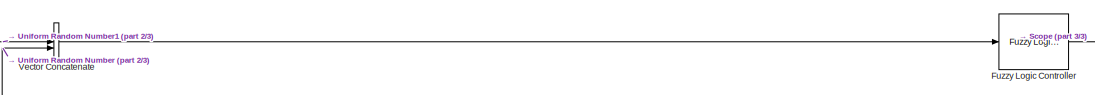
[diagram: root canvas - part 1/3, full width, top band]
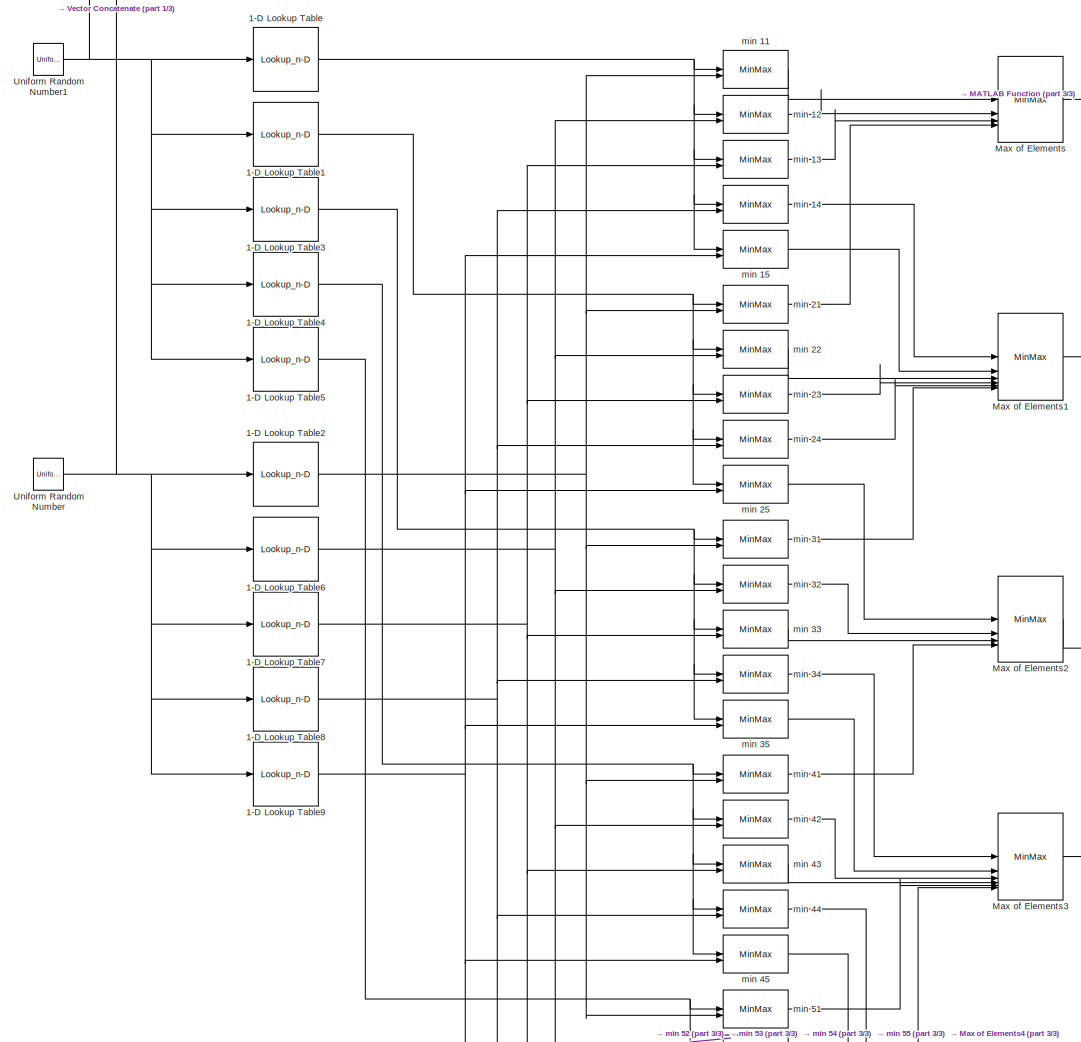
[diagram: root canvas - part 2/3, most of the canvas]
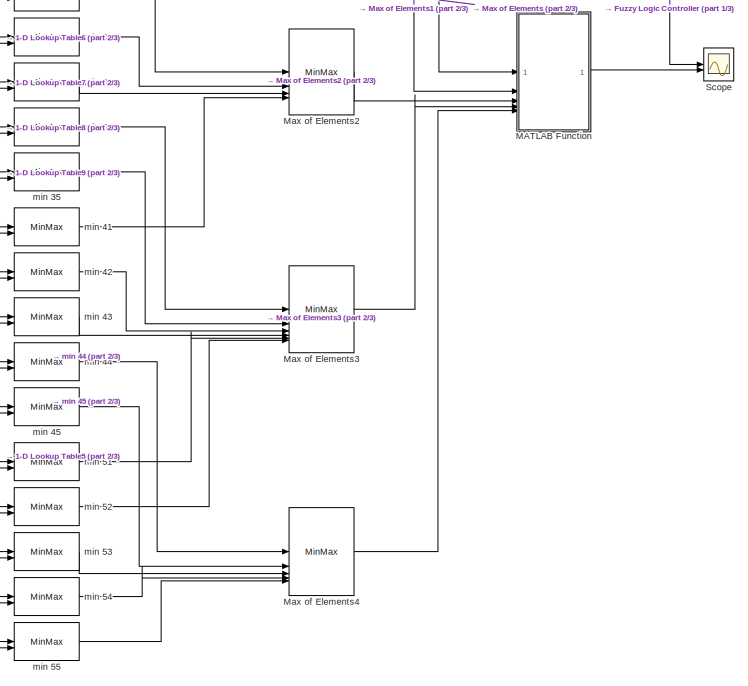
[diagram: root canvas - part 3/3, bottom right region]
MODEL slx_a39a839cb14b
KIND model
CONFIG AbsTol = auto
CONFIG EnableMultiTasking = off
CONFIG FixedStep = auto
CONFIG MaxStep = auto
CONFIG MinStep = auto
CONFIG RelTol = 1e-3
CONFIG SampleTimeConstraint = Unconstrained
CONFIG SolverName = FixedStepDiscrete
CONFIG StartTime = 0.0
CONFIG StopTime = 200
WORKSPACE source: mxarray member
WORKSPACE x = 1
WORKSPACE y = [100 100 100 100 100 100 100 100 100 100 100 100 ... (256 elements, 256x1)]
BLOCK [Lookup_n-D] 1-D Lookup Table
  BreakpointsForDimension1 = [0 1 2 3 4 5 6 7]
  BreakpointsForDimension1DataTypeStr = uint8
  BreakpointsForDimension1FirstPoint = 0
  BreakpointsForDimension1Max = 255
  BreakpointsForDimension1Min = 0
  BreakpointsSpecification = Even spacing
  FractionDataTypeStr = fixdt(0,8,0)
  IndexSearchMethod = Linear search
  InputPortMap = u0
  IntermediateResultsDataTypeStr = int8
  InternalRulePriority = Speed
  InterpMethod = Flat
  NumberOfTableDimensions = 1
  OutDataTypeStr = uint8
  Table = [100;100;100;100;100;100;100;100;100;100;100;100;100;100;100;100;100;100;100;100;100;95;90;85;80;75;70;65;64;64;50;45;40;35;30;25;20;15;10;5;0;0;0;0;0;0;0;0;0;0;0;0;0;0;0;0;0;0;0;0;0;0;0;0;0;0;0;0;0;0;0;0;0;0;0;0;0;0;0;0;0;0;0;0;0;0;0;0;0;0;0;0;0;0;0;0;0;0;0;0;0;0;0;0;0;0;0;0;0;0;0;0;0;0;0;0;0;0;0;0;0;0;0;0;0;0;0;0;0;0;0;0;0;0;0;0;0;0;0;0;0;0;0;0;0;0;0;0;0;0;0;0;0;0;0;0;0;0;0;0;0;0;0;0;0;0;0;0;0;0...<+173ch>
  TableDataTypeStr = uint8
  TableMax = 100
  TableMin = 0
BLOCK [Lookup_n-D] 1-D Lookup Table1
  BreakpointsForDimension1 = [0 1 2 3 4 5 6 7]
  BreakpointsForDimension1DataTypeStr = uint8
  BreakpointsForDimension1FirstPoint = 0
  BreakpointsForDimension1Max = 255
  BreakpointsForDimension1Min = 0
  BreakpointsSpecification = Even spacing
  FractionDataTypeStr = fixdt(0,8,0)
  IndexSearchMethod = Linear search
  InputPortMap = u0
  IntermediateResultsDataTypeStr = int8
  InternalRulePriority = Speed
  InterpMethod = Flat
  NumberOfTableDimensions = 1
  OutDataTypeStr = uint8
  Table = [0;0;0;0;0;0;0;0;0;0;0;0;0;0;0;0;0;0;0;0;0;5;10;15;20;25;30;35;40;45;50;55;64;65;70;75;80;85;90;95;100;100;100;100;100;100;100;100;100;100;100;100;100;100;100;100;100;100;100;100;100;95;90;85;80;75;70;65;64;64;50;45;40;35;30;25;20;15;10;5;0;0;0;0;0;0;0;0;0;0;0;0;0;0;0;0;0;0;0;0;0;0;0;0;0;0;0;0;0;0;0;0;0;0;0;0;0;0;0;0;0;0;0;0;0;0;0;0;0;0;0;0;0;0;0;0;0;0;0;0;0;0;0;0;0;0;0;0;0;0;0;0;0;0;0;0;0;0;0;0;0...<+191ch>
  TableDataTypeStr = uint8
  TableMax = 100
  TableMin = 0
BLOCK [Lookup_n-D] 1-D Lookup Table2
  BreakpointsForDimension1 = [0 1 2 3 4 5 6 7]
  BreakpointsForDimension1DataTypeStr = fixdt(0,10)
  BreakpointsForDimension1FirstPoint = 0
  BreakpointsForDimension1Max = 1023
  BreakpointsForDimension1Min = 0
  BreakpointsSpecification = Even spacing
  FractionDataTypeStr = fixdt(0,8,0)
  IndexSearchMethod = Linear search
  InputPortMap = u0
  IntermediateResultsDataTypeStr = int8
  InternalRulePriority = Speed
  InterpMethod = Flat
  NumberOfTableDimensions = 1
  OutDataTypeStr = uint8
  Table = [100;100;100;100;100;100;100;100;100;100;100;100;100;100;100;100;100;100;100;100;100;100;100;100;100;100;100;100;100;100;100;100;100;100;100;100;100;100;100;100;100;100;100;100;100;100;100;100;100;100;100;100;100;100;100;100;100;100;100;100;100;100;100;100;100;100;100;100;100;100;100;100;100;100;100;100;100;100;100;100;100;100;100;100;100;100;100;100;100;100;100;100;100;100;100;100;100;100;100;100...<+1941ch>
  TableDataTypeStr = uint8
  TableMax = 100
  TableMin = 0
BLOCK [Lookup_n-D] 1-D Lookup Table3
  BreakpointsForDimension1 = [0 1 2 3 4 5 6 7]
  BreakpointsForDimension1DataTypeStr = uint8
  BreakpointsForDimension1FirstPoint = 0
  BreakpointsForDimension1Max = 255
  BreakpointsForDimension1Min = 0
  BreakpointsSpecification = Even spacing
  FractionDataTypeStr = fixdt(0,8,0)
  IndexSearchMethod = Linear search
  InputPortMap = u0
  IntermediateResultsDataTypeStr = int8
  InternalRulePriority = Speed
  InterpMethod = Flat
  NumberOfTableDimensions = 1
  OutDataTypeStr = uint8
  Table = [0;0;0;0;0;0;0;0;0;0;0;0;0;0;0;0;0;0;0;0;0;0;0;0;0;0;0;0;0;0;0;0;0;0;0;0;0;0;0;0;0;0;0;0;0;0;0;0;0;0;0;0;0;0;0;0;0;0;0;0;0;5;10;15;20;25;30;35;40;45;50;55;64;65;70;75;80;85;90;95;100;100;100;100;100;100;100;100;100;100;100;100;100;100;100;100;100;100;100;100;100;95;90;85;80;75;70;65;64;64;50;45;40;35;30;25;20;15;10;5;0;0;0;0;0;0;0;0;0;0;0;0;0;0;0;0;0;0;0;0;0;0;0;0;0;0;0;0;0;0;0;0;0;0;0;0;0;0;0;0;0...<+191ch>
  TableDataTypeStr = uint8
  TableMax = 100
  TableMin = 0
BLOCK [Lookup_n-D] 1-D Lookup Table4
  BreakpointsForDimension1 = [0 1 2 3 4 5 6 7]
  BreakpointsForDimension1DataTypeStr = uint8
  BreakpointsForDimension1FirstPoint = 0
  BreakpointsForDimension1Max = 255
  BreakpointsForDimension1Min = 0
  BreakpointsSpecification = Even spacing
  FractionDataTypeStr = fixdt(0,8,0)
  IndexSearchMethod = Linear search
  InputPortMap = u0
  IntermediateResultsDataTypeStr = int8
  InternalRulePriority = Speed
  InterpMethod = Flat
  NumberOfTableDimensions = 1
  OutDataTypeStr = uint8
  Table = [0;0;0;0;0;0;0;0;0;0;0;0;0;0;0;0;0;0;0;0;0;0;0;0;0;0;0;0;0;0;0;0;0;0;0;0;0;0;0;0;0;0;0;0;0;0;0;0;0;0;0;0;0;0;0;0;0;0;0;0;0;0;0;0;0;0;0;0;0;0;0;0;0;0;0;0;0;0;0;0;0;0;0;0;0;0;0;0;0;0;0;0;0;0;0;0;0;0;0;0;0;5;10;15;20;25;30;35;40;45;50;55;64;65;70;75;80;85;90;95;100;100;100;100;100;100;100;100;100;100;100;100;100;100;100;100;100;100;100;100;100;95;90;85;80;75;70;65;64;64;50;45;40;35;30;25;20;15;10;5;0...<+191ch>
  TableDataTypeStr = uint8
  TableMax = 100
  TableMin = 0
BLOCK [Lookup_n-D] 1-D Lookup Table5
  BreakpointsForDimension1 = [0 1 2 3 4 5 6 7]
  BreakpointsForDimension1DataTypeStr = uint8
  BreakpointsForDimension1FirstPoint = 0
  BreakpointsForDimension1Max = 255
  BreakpointsForDimension1Min = 0
  BreakpointsSpecification = Even spacing
  FractionDataTypeStr = fixdt(0,8,0)
  IndexSearchMethod = Linear search
  InputPortMap = u0
  IntermediateResultsDataTypeStr = int8
  InternalRulePriority = Speed
  InterpMethod = Flat
  NumberOfTableDimensions = 1
  OutDataTypeStr = uint8
  Table = [0;0;0;0;0;0;0;0;0;0;0;0;0;0;0;0;0;0;0;0;0;0;0;0;0;0;0;0;0;0;0;0;0;0;0;0;0;0;0;0;0;0;0;0;0;0;0;0;0;0;0;0;0;0;0;0;0;0;0;0;0;0;0;0;0;0;0;0;0;0;0;0;0;0;0;0;0;0;0;0;0;0;0;0;0;0;0;0;0;0;0;0;0;0;0;0;0;0;0;0;0;0;0;0;0;0;0;0;0;0;0;0;0;0;0;0;0;0;0;0;0;0;0;0;0;0;0;0;0;0;0;0;0;0;0;0;0;0;0;0;0;5;10;15;32;32;32;35;40;45;50;55;60;65;70;75;80;85;90;95;100;100;100;100;100;100;100;100;100;100;100;100;100;100;100;1...<+323ch>
  TableDataTypeStr = uint8
  TableMax = 100
  TableMin = 0
BLOCK [Lookup_n-D] 1-D Lookup Table6
  BreakpointsForDimension1 = [0 1 2 3 4 5 6 7]
  BreakpointsForDimension1DataTypeStr = fixdt(0,10)
  BreakpointsForDimension1FirstPoint = 0
  BreakpointsForDimension1Max = 1023
  BreakpointsForDimension1Min = 0
  BreakpointsSpecification = Even spacing
  FractionDataTypeStr = fixdt(0,8,0)
  IndexSearchMethod = Linear search
  InputPortMap = u0
  IntermediateResultsDataTypeStr = int8
  InternalRulePriority = Speed
  InterpMethod = Flat
  NumberOfTableDimensions = 1
  OutDataTypeStr = uint8
  Table = [0;0;0;0;0;0;0;0;0;0;0;0;0;0;0;0;0;0;0;0;0;0;0;0;0;0;0;0;0;0;0;0;0;0;0;0;0;0;0;0;0;0;0;0;0;0;0;0;0;0;0;0;0;0;0;0;0;0;0;0;0;0;0;0;0;0;0;0;0;0;0;0;0;0;0;0;0;0;0;0;0;0;0;0;0;0;0;0;0;0;0;0;0;0;0;0;0;0;0;0;0;1;2;3;4;5;6;7;8;9;10;11;12;13;14;15;16;17;18;19;20;21;22;23;24;25;26;27;28;29;30;31;32;33;34;35;36;37;38;39;40;41;42;43;44;45;46;47;48;49;50;51;52;53;54;55;56;57;58;59;64;64;64;64;64;65;66;67;68;69...<+2031ch>
  TableDataTypeStr = uint8
  TableMax = 100
  TableMin = 0
BLOCK [Lookup_n-D] 1-D Lookup Table7
  BreakpointsForDimension1 = [0 1 2 3 4 5 6 7]
  BreakpointsForDimension1DataTypeStr = fixdt(0,10)
  BreakpointsForDimension1FirstPoint = 0
  BreakpointsForDimension1Max = 1023
  BreakpointsForDimension1Min = 0
  BreakpointsSpecification = Even spacing
  FractionDataTypeStr = fixdt(0,8,0)
  IndexSearchMethod = Linear search
  InputPortMap = u0
  IntermediateResultsDataTypeStr = int8
  InternalRulePriority = Speed
  InterpMethod = Flat
  NumberOfTableDimensions = 1
  OutDataTypeStr = uint8
  Table = [0;0;0;0;0;0;0;0;0;0;0;0;0;0;0;0;0;0;0;0;0;0;0;0;0;0;0;0;0;0;0;0;0;0;0;0;0;0;0;0;0;0;0;0;0;0;0;0;0;0;0;0;0;0;0;0;0;0;0;0;0;0;0;0;0;0;0;0;0;0;0;0;0;0;0;0;0;0;0;0;0;0;0;0;0;0;0;0;0;0;0;0;0;0;0;0;0;0;0;0;0;0;0;0;0;0;0;0;0;0;0;0;0;0;0;0;0;0;0;0;0;0;0;0;0;0;0;0;0;0;0;0;0;0;0;0;0;0;0;0;0;0;0;0;0;0;0;0;0;0;0;0;0;0;0;0;0;0;0;0;0;0;0;0;0;0;0;0;0;0;0;0;0;0;0;0;0;0;0;0;0;0;0;0;0;0;0;0;0;0;0;0;0;0;0;0;0;0;0;0...<+2031ch>
  TableDataTypeStr = uint8
  TableMax = 100
  TableMin = 0
BLOCK [Lookup_n-D] 1-D Lookup Table8
  BreakpointsForDimension1 = [0 1 2 3 4 5 6 7]
  BreakpointsForDimension1DataTypeStr = fixdt(0,10)
  BreakpointsForDimension1FirstPoint = 0
  BreakpointsForDimension1Max = 1023
  BreakpointsForDimension1Min = 0
  BreakpointsSpecification = Even spacing
  FractionDataTypeStr = fixdt(0,8,0)
  IndexSearchMethod = Linear search
  InputPortMap = u0
  IntermediateResultsDataTypeStr = int8
  InternalRulePriority = Speed
  InterpMethod = Flat
  NumberOfTableDimensions = 1
  OutDataTypeStr = uint8
  Table = [0;0;0;0;0;0;0;0;0;0;0;0;0;0;0;0;0;0;0;0;0;0;0;0;0;0;0;0;0;0;0;0;0;0;0;0;0;0;0;0;0;0;0;0;0;0;0;0;0;0;0;0;0;0;0;0;0;0;0;0;0;0;0;0;0;0;0;0;0;0;0;0;0;0;0;0;0;0;0;0;0;0;0;0;0;0;0;0;0;0;0;0;0;0;0;0;0;0;0;0;0;0;0;0;0;0;0;0;0;0;0;0;0;0;0;0;0;0;0;0;0;0;0;0;0;0;0;0;0;0;0;0;0;0;0;0;0;0;0;0;0;0;0;0;0;0;0;0;0;0;0;0;0;0;0;0;0;0;0;0;0;0;0;0;0;0;0;0;0;0;0;0;0;0;0;0;0;0;0;0;0;0;0;0;0;0;0;0;0;0;0;0;0;0;0;0;0;0;0;0...<+2031ch>
  TableDataTypeStr = uint8
  TableMax = 100
  TableMin = 0
BLOCK [Lookup_n-D] 1-D Lookup Table9
  BreakpointsForDimension1 = [0 1 2 3 4 5 6 7]
  BreakpointsForDimension1DataTypeStr = fixdt(0,10)
  BreakpointsForDimension1FirstPoint = 0
  BreakpointsForDimension1Max = 1023
  BreakpointsForDimension1Min = 0
  BreakpointsSpecification = Even spacing
  FractionDataTypeStr = fixdt(0,8,0)
  IndexSearchMethod = Linear search
  InputPortMap = u0
  IntermediateResultsDataTypeStr = int8
  InternalRulePriority = Speed
  InterpMethod = Flat
  NumberOfTableDimensions = 1
  OutDataTypeStr = uint8
  Table = [0;0;0;0;0;0;0;0;0;0;0;0;0;0;0;0;0;0;0;0;0;0;0;0;0;0;0;0;0;0;0;0;0;0;0;0;0;0;0;0;0;0;0;0;0;0;0;0;0;0;0;0;0;0;0;0;0;0;0;0;0;0;0;0;0;0;0;0;0;0;0;0;0;0;0;0;0;0;0;0;0;0;0;0;0;0;0;0;0;0;0;0;0;0;0;0;0;0;0;0;0;0;0;0;0;0;0;0;0;0;0;0;0;0;0;0;0;0;0;0;0;0;0;0;0;0;0;0;0;0;0;0;0;0;0;0;0;0;0;0;0;0;0;0;0;0;0;0;0;0;0;0;0;0;0;0;0;0;0;0;0;0;0;0;0;0;0;0;0;0;0;0;0;0;0;0;0;0;0;0;0;0;0;0;0;0;0;0;0;0;0;0;0;0;0;0;0;0;0;0...<+2187ch>
  TableDataTypeStr = uint8
  TableMax = 100
  TableMin = 0
BLOCK [Reference] Fuzzy Logic Controller  REF=fuzblock/Fuzzy Logic   (lib defined in mdl_858b3b3e7478)
Controller
  SourceBlock = fuzblock/Fuzzy Logic \nController
  SourceType = Fuzzy Inference System
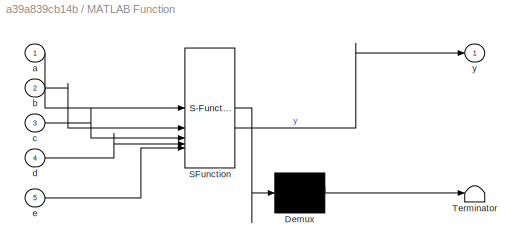
BLOCK [SubSystem] MATLAB Function
  ErrorFcn = Stateflow.Translate.translate
  LibrarySourceBlock = simulink/User-Defined\nFunctions/MATLAB Function
  PermitHierarchicalResolution = ExplicitOnly
  SFBlockType = MATLAB Function
  TreatAsAtomicUnit = on
BLOCK [Demux] MATLAB Function/ Demux 
  Outputs = 1
BLOCK [S-Function] MATLAB Function/ SFunction 
  EnableBusSupport = on
  FunctionName = sf_sfun
  PortCounts = [5 2]
  SFcnIsStateOwnerBlock = off
  SFunctionDeploymentMode = off
  Tag = Stateflow S-Function 2
BLOCK [Terminator] MATLAB Function/ Terminator 
BLOCK [Inport] MATLAB Function/a
BLOCK [Inport] MATLAB Function/b
  Port = 2
BLOCK [Inport] MATLAB Function/c
  Port = 3
BLOCK [Inport] MATLAB Function/d
  Port = 4
BLOCK [Inport] MATLAB Function/e
  Port = 5
BLOCK [Outport] MATLAB Function/y
BLOCK [MinMax] Max of Elements
  Function = max
  Inputs = 4
  OutDataTypeStr = uint8
  OutMax = 100
  OutMin = 0
BLOCK [MinMax] Max of Elements1
  Function = max
  Inputs = 6
  OutDataTypeStr = uint8
BLOCK [MinMax] Max of Elements2
  Function = max
  Inputs = 4
  OutDataTypeStr = uint8
BLOCK [MinMax] Max of Elements3
  Function = max
  Inputs = 6
  OutDataTypeStr = uint8
BLOCK [MinMax] Max of Elements4
  Function = max
  Inputs = 5
  OutDataTypeStr = uint8
BLOCK [Scope] Scope
  Floating = off
  NumInputPorts = 2
  ScopeSpecificationString = Simulink.scopes.TimeScopeBlockCfg('CurrentConfiguration', extmgr.ConfigurationSet(extmgr.Configuration('Core','General UI',true,'FigureColor',[0 0 0]),extmgr.Configuration('Core','Source UI',true),extmgr.Configuration('Sources','WiredSimulink',true),extmgr.Configuration('Visuals','Time Domain',true,'SerializedDisplays',{struct('MinYLimReal','-0.5','MaxYLimReal','4.5','YLabelReal','','MinYLimMag','...<+2420ch>
BLOCK [UniformRandomNumber] Uniform Random Number
  Maximum = 1023
  Minimum = 0
  SampleTime = 1
  Seed = 49
BLOCK [UniformRandomNumber] Uniform Random Number1
  Maximum = 180
  Minimum = 0
  SampleTime = 1
  Seed = 23
BLOCK [Concatenate] Vector Concatenate
BLOCK [MinMax] min 11
  Inputs = 2
  OutDataTypeStr = uint8
  OutMax = 100
  OutMin = 0
BLOCK [MinMax] min 12
  Inputs = 2
  OutDataTypeStr = uint8
  OutMax = 100
  OutMin = 0
BLOCK [MinMax] min 13
  Inputs = 2
  OutDataTypeStr = uint8
  OutMax = 100
  OutMin = 0
BLOCK [MinMax] min 14
  Inputs = 2
  OutDataTypeStr = uint8
  OutMax = 100
  OutMin = 0
BLOCK [MinMax] min 15
  Inputs = 2
  OutDataTypeStr = uint8
  OutMax = 100
  OutMin = 0
BLOCK [MinMax] min 21
  Inputs = 2
  OutDataTypeStr = uint8
  OutMax = 100
  OutMin = 0
BLOCK [MinMax] min 22
  Inputs = 2
  OutDataTypeStr = uint8
  OutMax = 100
  OutMin = 0
BLOCK [MinMax] min 23
  Inputs = 2
  OutDataTypeStr = uint8
  OutMax = 100
  OutMin = 0
BLOCK [MinMax] min 24
  Inputs = 2
  OutDataTypeStr = uint8
  OutMax = 100
  OutMin = 0
BLOCK [MinMax] min 25
  Inputs = 2
  OutDataTypeStr = uint8
  OutMax = 100
  OutMin = 0
BLOCK [MinMax] min 31
  Inputs = 2
  OutDataTypeStr = uint8
  OutMax = 100
  OutMin = 0
BLOCK [MinMax] min 32
  Inputs = 2
  OutDataTypeStr = uint8
  OutMax = 100
  OutMin = 0
BLOCK [MinMax] min 33
  Inputs = 2
  OutDataTypeStr = uint8
  OutMax = 100
  OutMin = 0
BLOCK [MinMax] min 34
  Inputs = 2
  OutDataTypeStr = uint8
  OutMax = 100
  OutMin = 0
BLOCK [MinMax] min 35
  Inputs = 2
  OutDataTypeStr = uint8
  OutMax = 100
  OutMin = 0
BLOCK [MinMax] min 41
  Inputs = 2
  OutDataTypeStr = uint8
  OutMax = 100
  OutMin = 0
BLOCK [MinMax] min 42
  Inputs = 2
  OutDataTypeStr = uint8
  OutMax = 100
  OutMin = 0
BLOCK [MinMax] min 43
  Inputs = 2
  OutDataTypeStr = uint8
  OutMax = 100
  OutMin = 0
BLOCK [MinMax] min 44
  Inputs = 2
  OutDataTypeStr = uint8
  OutMax = 100
  OutMin = 0
BLOCK [MinMax] min 45
  Inputs = 2
  OutDataTypeStr = uint8
  OutMax = 100
  OutMin = 0
BLOCK [MinMax] min 51
  Inputs = 2
  OutDataTypeStr = uint8
  OutMax = 100
  OutMin = 0
BLOCK [MinMax] min 52
  Inputs = 2
  OutDataTypeStr = uint8
  OutMax = 100
  OutMin = 0
BLOCK [MinMax] min 53
  Inputs = 2
  OutDataTypeStr = uint8
  OutMax = 100
  OutMin = 0
BLOCK [MinMax] min 54
  Inputs = 2
  OutDataTypeStr = uint8
  OutMax = 100
  OutMin = 0
BLOCK [MinMax] min 55
  Inputs = 2
  OutDataTypeStr = uint8
  OutMax = 100
  OutMin = 0
NET 1-D Lookup Table1:1 -> min 21:1, min 22:1, min 23:1, min 24:1, min 25:1
NET 1-D Lookup Table2:1 -> min 11:2, min 21:2, min 31:2, min 41:2, min 51:2
NET 1-D Lookup Table3:1 -> min 31:1, min 32:1, min 33:1, min 34:1, min 35:1
NET 1-D Lookup Table4:1 -> min 41:1, min 42:1, min 43:1, min 44:1, min 45:1
NET 1-D Lookup Table5:1 -> min 51:1, min 52:1, min 53:1, min 54:1, min 55:1
NET 1-D Lookup Table6:1 -> min 12:2, min 22:2, min 32:2, min 42:2, min 52:2
NET 1-D Lookup Table7:1 -> min 13:2, min 23:2, min 33:2, min 43:2, min 53:2
NET 1-D Lookup Table8:1 -> min 14:2, min 24:2, min 34:2, min 44:2, min 54:2
NET 1-D Lookup Table9:1 -> min 15:2, min 25:2, min 35:2, min 45:2, min 55:2
NET 1-D Lookup Table:1 -> min 11:1, min 12:1, min 13:1, min 14:1, min 15:1
LINE Fuzzy Logic Controller:1 -> Scope:1
LINE MATLAB Function:1 -> Scope:2
LINE Max of Elements1:1 -> MATLAB Function:2
LINE Max of Elements2:1 -> MATLAB Function:3
LINE Max of Elements3:1 -> MATLAB Function:4
LINE Max of Elements4:1 -> MATLAB Function:5
LINE Max of Elements:1 -> MATLAB Function:1
NET Uniform Random Number1:1 -> 1-D Lookup Table1:1, 1-D Lookup Table3:1, 1-D Lookup Table4:1, 1-D Lookup Table5:1, 1-D Lookup Table:1, Vector Concatenate:1
NET Uniform Random Number:1 -> 1-D Lookup Table2:1, 1-D Lookup Table6:1, 1-D Lookup Table7:1, 1-D Lookup Table8:1, 1-D Lookup Table9:1, Vector Concatenate:2
LINE Vector Concatenate:1 -> Fuzzy Logic Controller:1
LINE min 11:1 -> Max of Elements:1
LINE min 12:1 -> Max of Elements:2
LINE min 13:1 -> Max of Elements:3
LINE min 14:1 -> Max of Elements1:1
LINE min 15:1 -> Max of Elements1:2
LINE min 21:1 -> Max of Elements:4
LINE min 22:1 -> Max of Elements1:3
LINE min 23:1 -> Max of Elements1:4
LINE min 24:1 -> Max of Elements1:5
LINE min 25:1 -> Max of Elements2:1
LINE min 31:1 -> Max of Elements1:6
LINE min 32:1 -> Max of Elements2:2
LINE min 33:1 -> Max of Elements2:3
LINE min 34:1 -> Max of Elements3:1
LINE min 35:1 -> Max of Elements3:2
LINE min 41:1 -> Max of Elements2:4
LINE min 42:1 -> Max of Elements3:3
LINE min 43:1 -> Max of Elements3:4
LINE min 44:1 -> Max of Elements4:1
LINE min 45:1 -> Max of Elements4:2
LINE min 51:1 -> Max of Elements3:5
LINE min 52:1 -> Max of Elements3:6
LINE min 53:1 -> Max of Elements4:3
LINE min 54:1 -> Max of Elements4:4
LINE min 55:1 -> Max of Elements4:5
note: NET lines group one-source signal fan-out (src -> all destinations, sorted); 1:1 wires keep LINE
CHART MATLAB Function states=1 transitions=1
  STATE_LABEL 'eML_blk_kernel()'
  STATE_LABEL 'SCRIPT:\nfunction y = fcn(a,b,c,d,e)\nmax = a;\ny = uint8(0);\nif (b >= max)\n    max = b;\n    y = uint8(1);\nend\nif (c >= max)\n    max = c;\n    y = uint8(2);\nend\nif (d >= max)\n    max = d;\n    y = uint8(3);\nend\nif (e >= max)\n    y = uint8(4);\nend\n'
CHART  states=0 transitions=0
